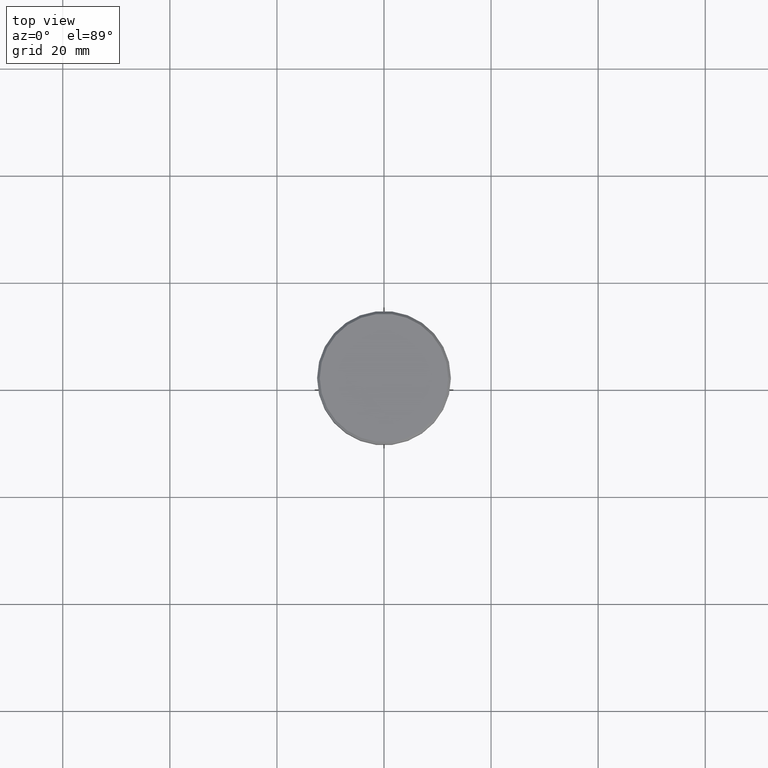
[diagram: clean part render]
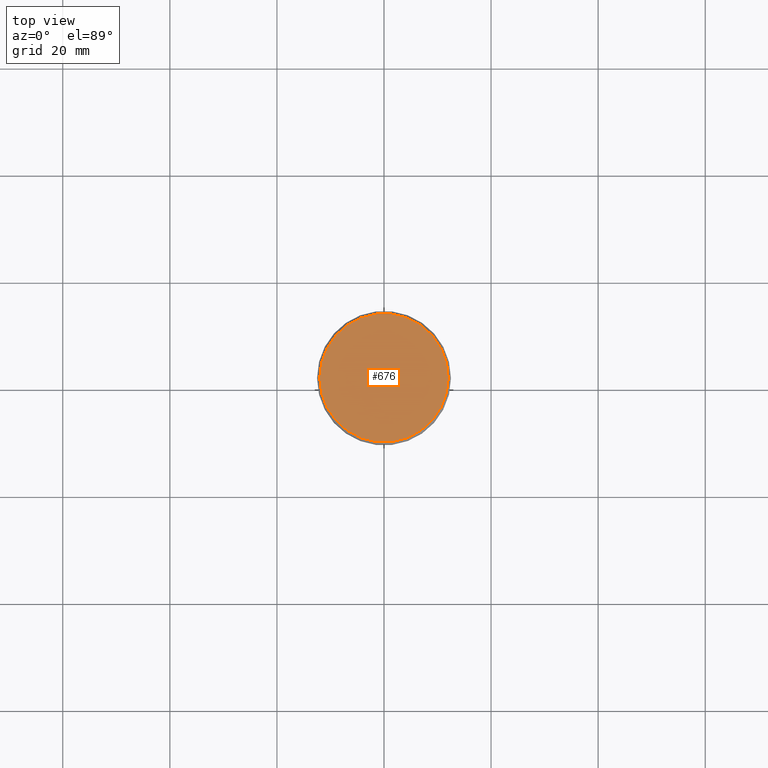
[diagram: same view with one face highlighted and labeled with its STEP entity id]
A machine part, top view. The second image highlights one B-rep face of the part: STEP entity #676.
In plain terms, the highlighted planar face has unit normal (0, -0, 1).
Its self-contained STEP definition (entity closure, byte-faithful):
#69 = DIRECTION ( 'NONE',  ( -0.000000000000000000, -0.000000000000000000, 1.000000000000000000 ) ) ;
#85 = EDGE_CURVE ( 'NONE', #245, #958, #581, .T. ) ;
#155 = EDGE_LOOP ( 'NONE', ( #1074, #1071 ) ) ;
#214 = CARTESIAN_POINT ( 'NONE',  ( 12.00000000000002487, 1.500192328955509115E-15, 0.000000000000000000 ) ) ;
#241 = DIRECTION ( 'NONE',  ( -0.000000000000000000, -0.000000000000000000, 1.000000000000000000 ) ) ;
#245 = VERTEX_POINT ( 'NONE', #214 ) ;
#258 = CARTESIAN_POINT ( 'NONE',  ( -12.00000000000002487, 0.000000000000000000, 0.000000000000000000 ) ) ;
#401 = DIRECTION ( 'NONE',  ( 1.000000000000000000, 0.000000000000000000, 0.000000000000000000 ) ) ;
#422 = CARTESIAN_POINT ( 'NONE',  ( 0.000000000000000000, 0.000000000000000000, 0.000000000000000000 ) ) ;
#429 = DIRECTION ( 'NONE',  ( 1.000000000000000000, 0.000000000000000000, 0.000000000000000000 ) ) ;
#486 = CIRCLE ( 'NONE', #684, 12.00000000000002487 ) ;
#538 = DIRECTION ( 'NONE',  ( 1.000000000000000000, 0.000000000000000000, 0.000000000000000000 ) ) ;
#572 = FACE_OUTER_BOUND ( 'NONE', #155, .T. ) ;
#581 = CIRCLE ( 'NONE', #619, 12.00000000000002487 ) ;
#619 = AXIS2_PLACEMENT_3D ( 'NONE', #422, #69, #429 ) ;
#632 = CARTESIAN_POINT ( 'NONE',  ( 0.000000000000000000, 0.000000000000000000, 0.000000000000000000 ) ) ;
#676 = ADVANCED_FACE ( 'NONE', ( #572 ), #931, .T. ) ;
#682 = AXIS2_PLACEMENT_3D ( 'NONE', #1125, #1121, #401 ) ;
#684 = AXIS2_PLACEMENT_3D ( 'NONE', #632, #241, #538 ) ;
#931 = PLANE ( 'NONE',  #682 ) ;
#958 = VERTEX_POINT ( 'NONE', #258 ) ;
#1070 = EDGE_CURVE ( 'NONE', #958, #245, #486, .T. ) ;
#1071 = ORIENTED_EDGE ( 'NONE', *, *, #85, .T. ) ;
#1074 = ORIENTED_EDGE ( 'NONE', *, *, #1070, .T. ) ;
#1121 = DIRECTION ( 'NONE',  ( 0.000000000000000000, -0.000000000000000000, 1.000000000000000000 ) ) ;
#1125 = CARTESIAN_POINT ( 'NONE',  ( 0.000000000000000000, 0.000000000000000000, 0.000000000000000000 ) ) ;